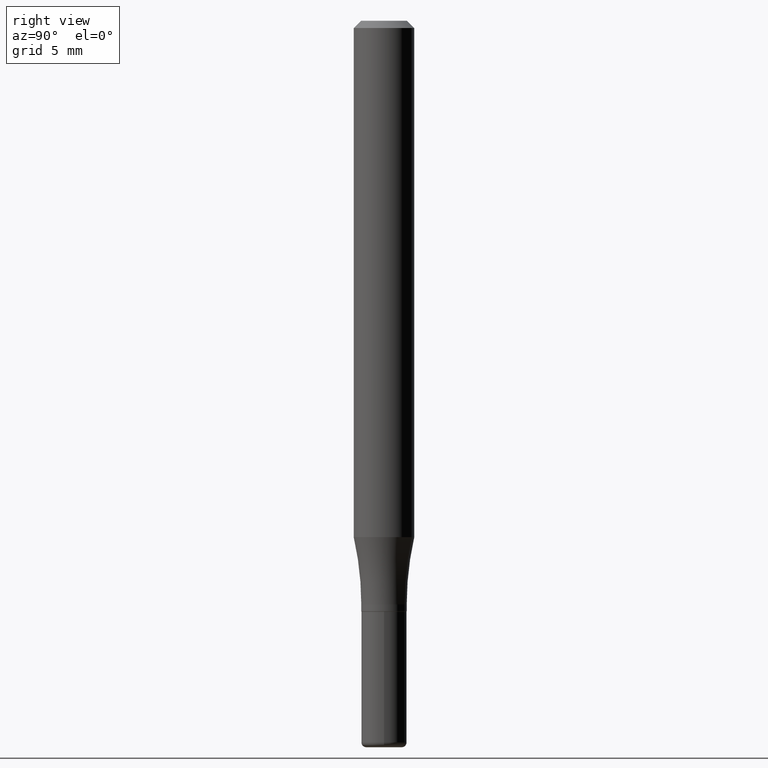
[diagram: clean part render]
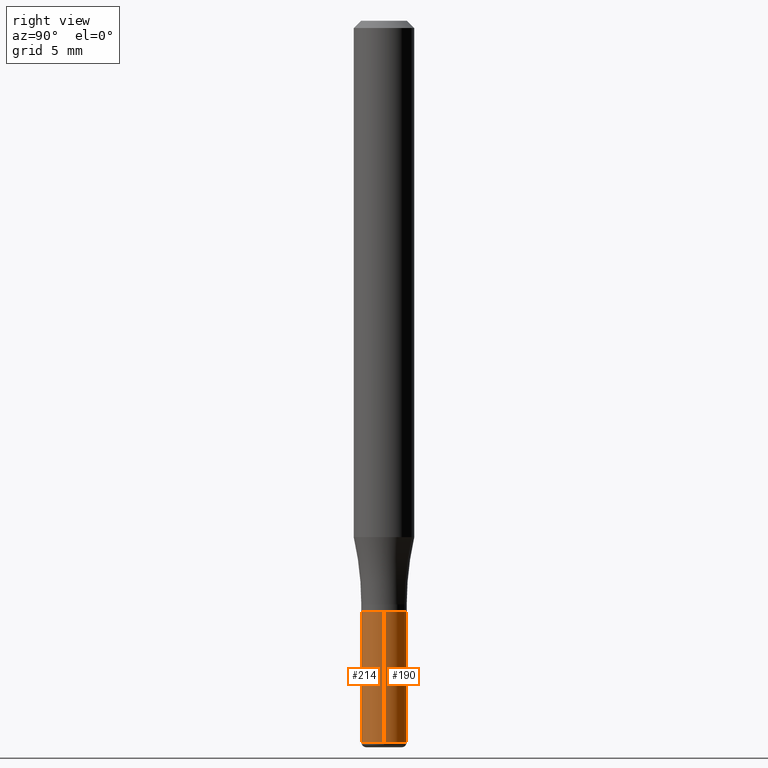
[diagram: same view with one multi-face feature highlighted, each face labeled with its STEP entity id]
A machine part, right view. The highlighted faces form ONE feature: a constant-radius fillet chain: 2 tangent blend faces with common blend radius 1.1913 mm. The faces share edges in the B-rep.
Their STEP definitions:
[1] entity #190 (Cylinder):
#1 = EDGE_CURVE ( 'NONE', #261, #139, #33, .T. ) ;
#11 = CARTESIAN_POINT ( 'NONE',  ( -0.04689999999999999725, -4.397712671060976636E-15, -1.220000000000000195 ) ) ;
#12 = CIRCLE ( 'NONE', #417, 0.04689999999999999725 ) ;
#22 = ORIENTED_EDGE ( 'NONE', *, *, #109, .F. ) ;
#29 = EDGE_LOOP ( 'NONE', ( #507, #383, #22, #257 ) ) ;
#33 = LINE ( 'NONE', #222, #235 ) ;
#46 = AXIS2_PLACEMENT_3D ( 'NONE', #415, #129, #413 ) ;
#53 = EDGE_CURVE ( 'NONE', #65, #439, #183, .T. ) ;
#65 = VERTEX_POINT ( 'NONE', #430 ) ;
#109 = EDGE_CURVE ( 'NONE', #139, #439, #12, .T. ) ;
#129 = DIRECTION ( 'NONE',  ( -2.445468806185136597E-29, 3.491481338843145583E-15, 1.000000000000000000 ) ) ;
#139 = VERTEX_POINT ( 'NONE', #301 ) ;
#140 = DIRECTION ( 'NONE',  ( -2.445468806185136877E-29, 3.491481338843145188E-15, 1.000000000000000000 ) ) ;
#148 = DIRECTION ( 'NONE',  ( -2.445468806185136877E-29, 3.491481338843145188E-15, 1.000000000000000000 ) ) ;
#183 = LINE ( 'NONE', #185, #206 ) ;
#185 = CARTESIAN_POINT ( 'NONE',  ( -0.04689999999999990704, 3.332445430714863267E-16, -2.306980557329546398E-30 ) ) ;
#190 = ADVANCED_FACE ( 'NONE', ( #274 ), #404, .T. ) ;
#195 = DIRECTION ( 'NONE',  ( -2.445468806185136597E-29, 3.491481338843145583E-15, 1.000000000000000000 ) ) ;
#206 = VECTOR ( 'NONE', #148, 39.37007874015748143 ) ;
#215 = CIRCLE ( 'NONE', #46, 0.04689999999999980990 ) ;
#222 = CARTESIAN_POINT ( 'NONE',  ( 0.04689999999999990704, -3.275009495834852122E-16, 2.286926907848289134E-30 ) ) ;
#235 = VECTOR ( 'NONE', #140, 39.37007874015748143 ) ;
#257 = ORIENTED_EDGE ( 'NONE', *, *, #1, .F. ) ;
#261 = VERTEX_POINT ( 'NONE', #352 ) ;
#274 = FACE_OUTER_BOUND ( 'NONE', #29, .T. ) ;
#301 = CARTESIAN_POINT ( 'NONE',  ( 0.04689999999999999725, -4.587108182972123426E-15, -1.220000000000000195 ) ) ;
#309 = DIRECTION ( 'NONE',  ( 1.000000000000000000, -6.982962677686256455E-15, 0.000000000000000000 ) ) ;
#352 = CARTESIAN_POINT ( 'NONE',  ( 0.04689999999999980990, -5.529808144459772430E-15, -1.490000000000000213 ) ) ;
#383 = ORIENTED_EDGE ( 'NONE', *, *, #53, .T. ) ;
#398 = CARTESIAN_POINT ( 'NONE',  ( 0.000000000000000000, 0.000000000000000000, 0.000000000000000000 ) ) ;
#404 = CYLINDRICAL_SURFACE ( 'NONE', #479, 0.04689999999999990704 ) ;
#413 = DIRECTION ( 'NONE',  ( 1.000000000000000000, -6.982962677686263555E-15, 0.000000000000000000 ) ) ;
#415 = CARTESIAN_POINT ( 'NONE',  ( 3.643748521215853910E-29, -5.202307194876288105E-15, -1.490000000000000213 ) ) ;
#417 = AXIS2_PLACEMENT_3D ( 'NONE', #493, #495, #309 ) ;
#430 = CARTESIAN_POINT ( 'NONE',  ( -0.04689999999999980990, -4.397712671060978214E-15, -1.490000000000000213 ) ) ;
#434 = DIRECTION ( 'NONE',  ( 1.000000000000000000, -6.982962677686265922E-15, 4.876176775795935232E-29 ) ) ;
#439 = VERTEX_POINT ( 'NONE', #11 ) ;
#479 = AXIS2_PLACEMENT_3D ( 'NONE', #398, #195, #434 ) ;
#485 = EDGE_CURVE ( 'NONE', #261, #65, #215, .T. ) ;
#493 = CARTESIAN_POINT ( 'NONE',  ( 2.983471943545866670E-29, -4.259607233388637524E-15, -1.220000000000000195 ) ) ;
#495 = DIRECTION ( 'NONE',  ( -2.445468806185136597E-29, 3.491481338843145583E-15, 1.000000000000000000 ) ) ;
#507 = ORIENTED_EDGE ( 'NONE', *, *, #485, .T. ) ;
[2] entity #214 (Cylinder):
#1 = EDGE_CURVE ( 'NONE', #261, #139, #33, .T. ) ;
#11 = CARTESIAN_POINT ( 'NONE',  ( -0.04689999999999999725, -4.397712671060976636E-15, -1.220000000000000195 ) ) ;
#19 = EDGE_LOOP ( 'NONE', ( #124, #390, #461, #276 ) ) ;
#33 = LINE ( 'NONE', #222, #235 ) ;
#37 = CYLINDRICAL_SURFACE ( 'NONE', #385, 0.04689999999999990704 ) ;
#41 = FACE_OUTER_BOUND ( 'NONE', #19, .T. ) ;
#53 = EDGE_CURVE ( 'NONE', #65, #439, #183, .T. ) ;
#65 = VERTEX_POINT ( 'NONE', #430 ) ;
#89 = DIRECTION ( 'NONE',  ( 1.000000000000000000, -6.982962677686256455E-15, 0.000000000000000000 ) ) ;
#112 = CIRCLE ( 'NONE', #438, 0.04689999999999999725 ) ;
#124 = ORIENTED_EDGE ( 'NONE', *, *, #53, .F. ) ;
#139 = VERTEX_POINT ( 'NONE', #301 ) ;
#140 = DIRECTION ( 'NONE',  ( -2.445468806185136877E-29, 3.491481338843145188E-15, 1.000000000000000000 ) ) ;
#142 = DIRECTION ( 'NONE',  ( 1.000000000000000000, -6.982962677686263555E-15, 0.000000000000000000 ) ) ;
#148 = DIRECTION ( 'NONE',  ( -2.445468806185136877E-29, 3.491481338843145188E-15, 1.000000000000000000 ) ) ;
#157 = DIRECTION ( 'NONE',  ( -2.445468806185136597E-29, 3.491481338843145583E-15, 1.000000000000000000 ) ) ;
#160 = EDGE_CURVE ( 'NONE', #65, #261, #278, .T. ) ;
#183 = LINE ( 'NONE', #185, #206 ) ;
#185 = CARTESIAN_POINT ( 'NONE',  ( -0.04689999999999990704, 3.332445430714863267E-16, -2.306980557329546398E-30 ) ) ;
#206 = VECTOR ( 'NONE', #148, 39.37007874015748143 ) ;
#214 = ADVANCED_FACE ( 'NONE', ( #41 ), #37, .T. ) ;
#222 = CARTESIAN_POINT ( 'NONE',  ( 0.04689999999999990704, -3.275009495834852122E-16, 2.286926907848289134E-30 ) ) ;
#235 = VECTOR ( 'NONE', #140, 39.37007874015748143 ) ;
#261 = VERTEX_POINT ( 'NONE', #352 ) ;
#275 = DIRECTION ( 'NONE',  ( 1.000000000000000000, -6.982962677686265922E-15, 4.876176775795935232E-29 ) ) ;
#276 = ORIENTED_EDGE ( 'NONE', *, *, #462, .F. ) ;
#278 = CIRCLE ( 'NONE', #410, 0.04689999999999980990 ) ;
#301 = CARTESIAN_POINT ( 'NONE',  ( 0.04689999999999999725, -4.587108182972123426E-15, -1.220000000000000195 ) ) ;
#328 = CARTESIAN_POINT ( 'NONE',  ( 2.983471943545866670E-29, -4.259607233388637524E-15, -1.220000000000000195 ) ) ;
#340 = CARTESIAN_POINT ( 'NONE',  ( 3.643748521215853910E-29, -5.202307194876288105E-15, -1.490000000000000213 ) ) ;
#352 = CARTESIAN_POINT ( 'NONE',  ( 0.04689999999999980990, -5.529808144459772430E-15, -1.490000000000000213 ) ) ;
#385 = AXIS2_PLACEMENT_3D ( 'NONE', #476, #157, #275 ) ;
#390 = ORIENTED_EDGE ( 'NONE', *, *, #160, .T. ) ;
#410 = AXIS2_PLACEMENT_3D ( 'NONE', #340, #500, #142 ) ;
#430 = CARTESIAN_POINT ( 'NONE',  ( -0.04689999999999980990, -4.397712671060978214E-15, -1.490000000000000213 ) ) ;
#438 = AXIS2_PLACEMENT_3D ( 'NONE', #328, #453, #89 ) ;
#439 = VERTEX_POINT ( 'NONE', #11 ) ;
#453 = DIRECTION ( 'NONE',  ( -2.445468806185136597E-29, 3.491481338843145583E-15, 1.000000000000000000 ) ) ;
#461 = ORIENTED_EDGE ( 'NONE', *, *, #1, .T. ) ;
#462 = EDGE_CURVE ( 'NONE', #439, #139, #112, .T. ) ;
#476 = CARTESIAN_POINT ( 'NONE',  ( 0.000000000000000000, 0.000000000000000000, 0.000000000000000000 ) ) ;
#500 = DIRECTION ( 'NONE',  ( -2.445468806185136597E-29, 3.491481338843145583E-15, 1.000000000000000000 ) ) ;